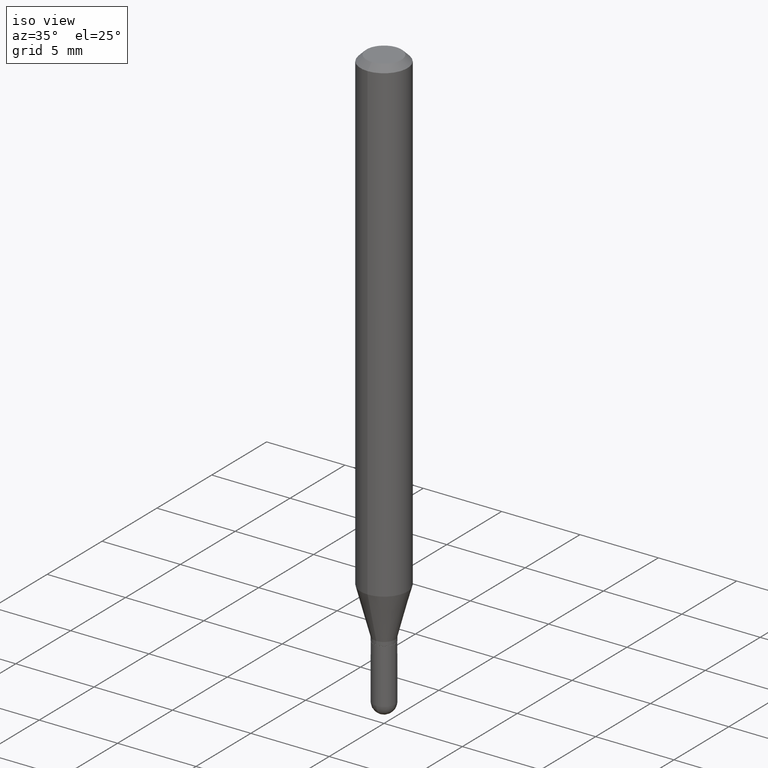
[diagram: clean part render]
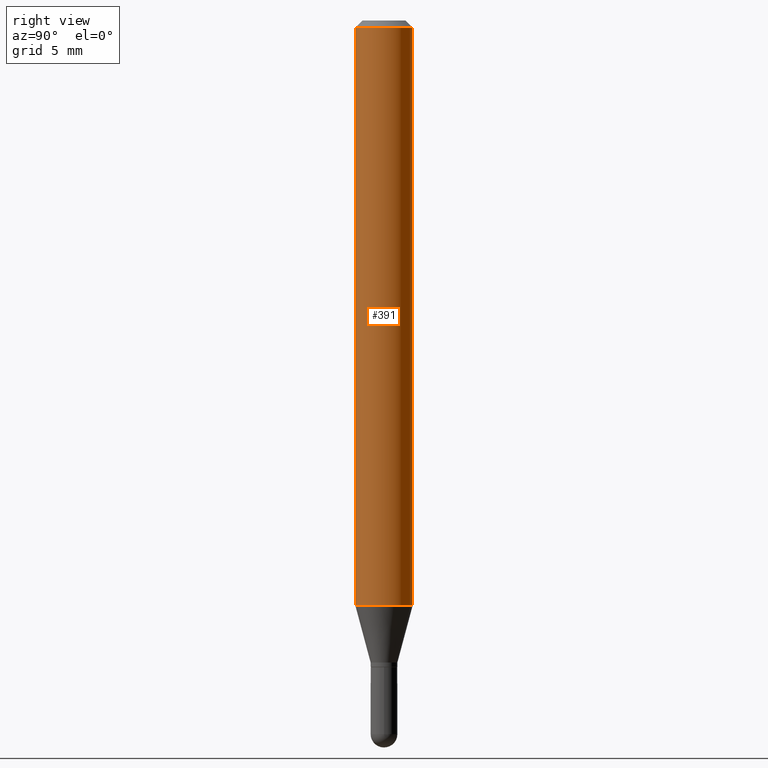
[diagram: tour spotlight — one face highlighted and labeled with its STEP entity id]
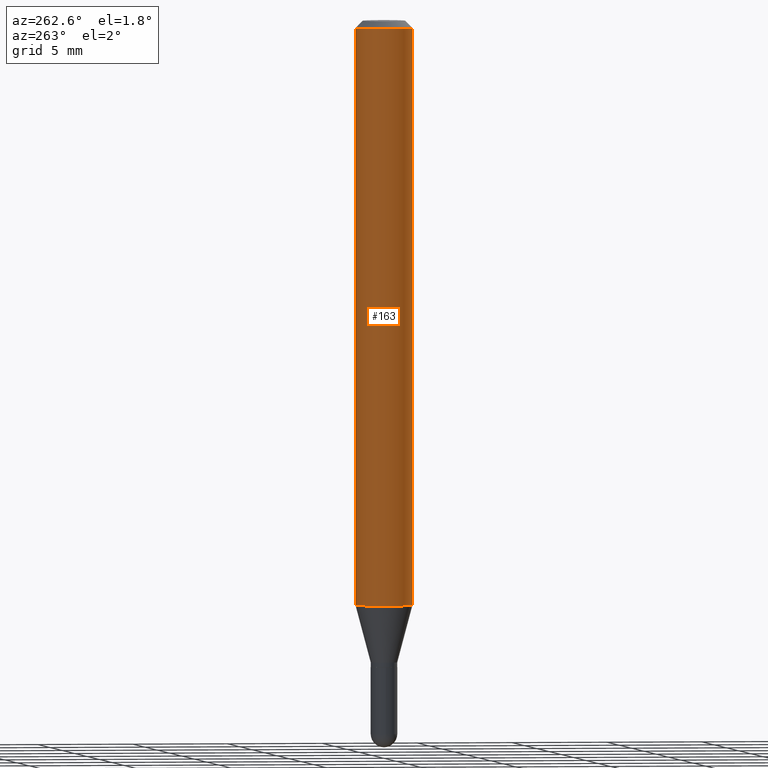
[diagram: tour spotlight — one face highlighted and labeled with its STEP entity id]
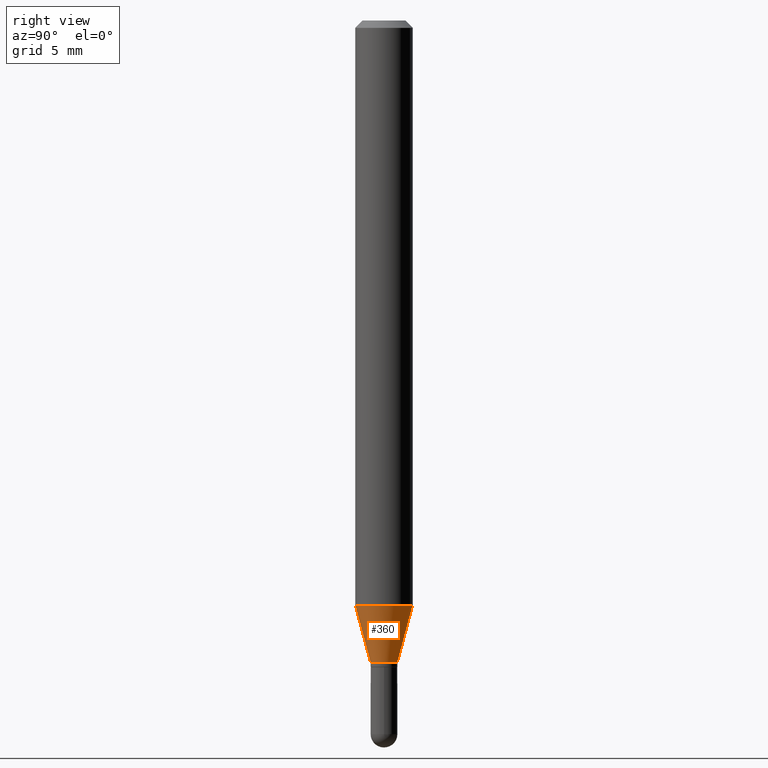
[diagram: tour spotlight — one face highlighted and labeled with its STEP entity id]
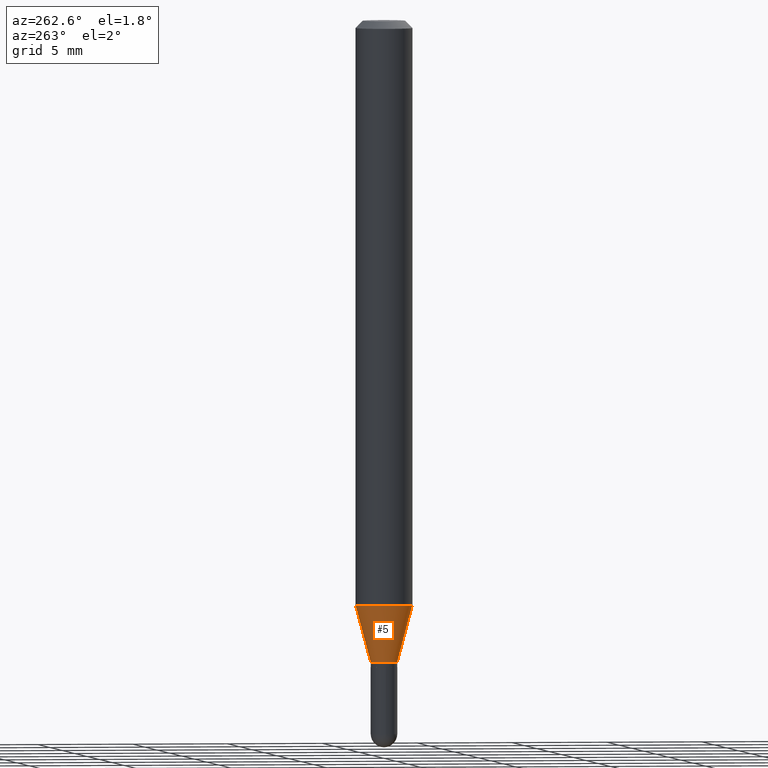
[diagram: tour spotlight — one face highlighted and labeled with its STEP entity id]
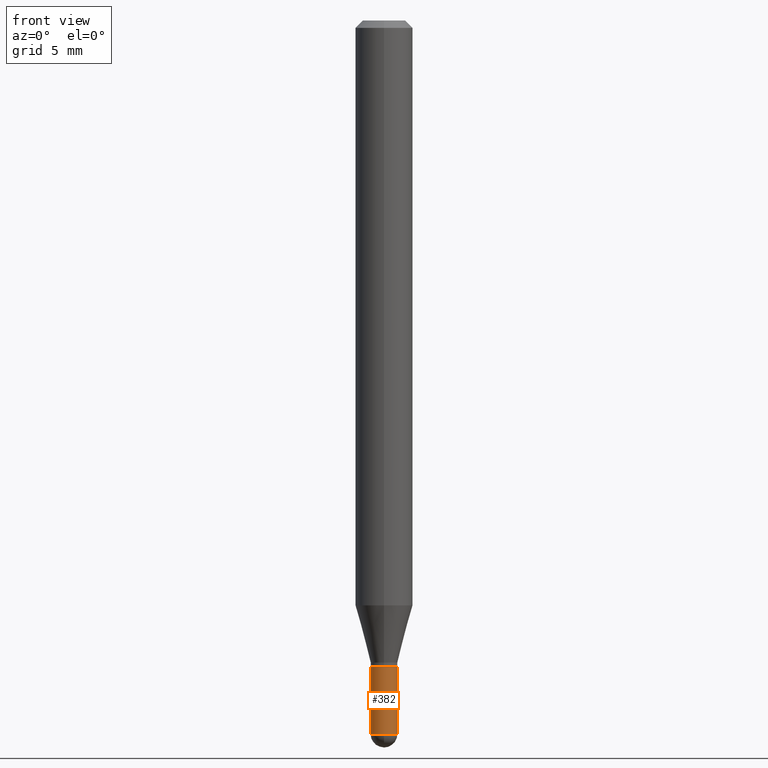
[diagram: tour spotlight — one face highlighted and labeled with its STEP entity id]
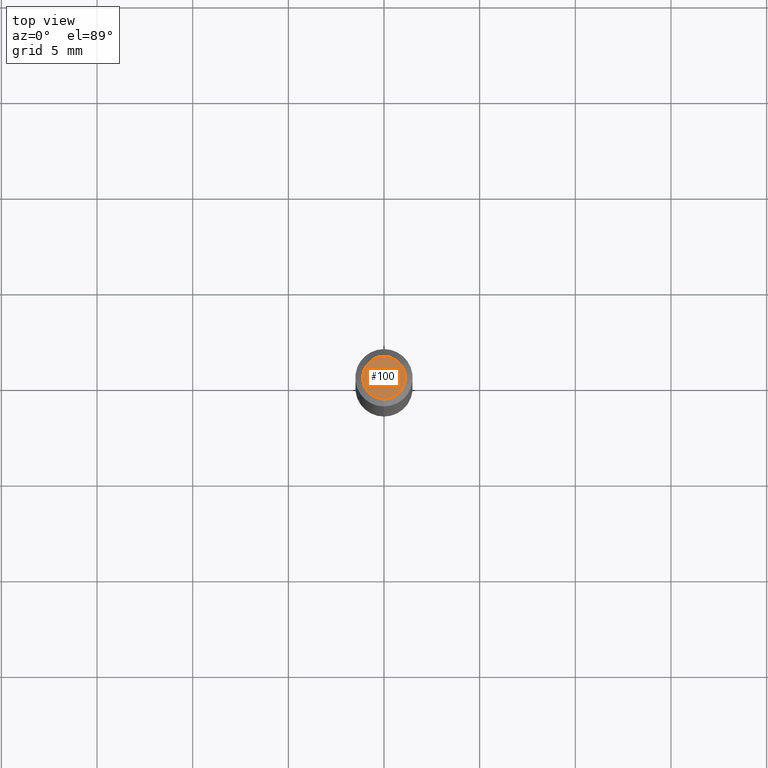
[diagram: tour spotlight — one face highlighted and labeled with its STEP entity id]
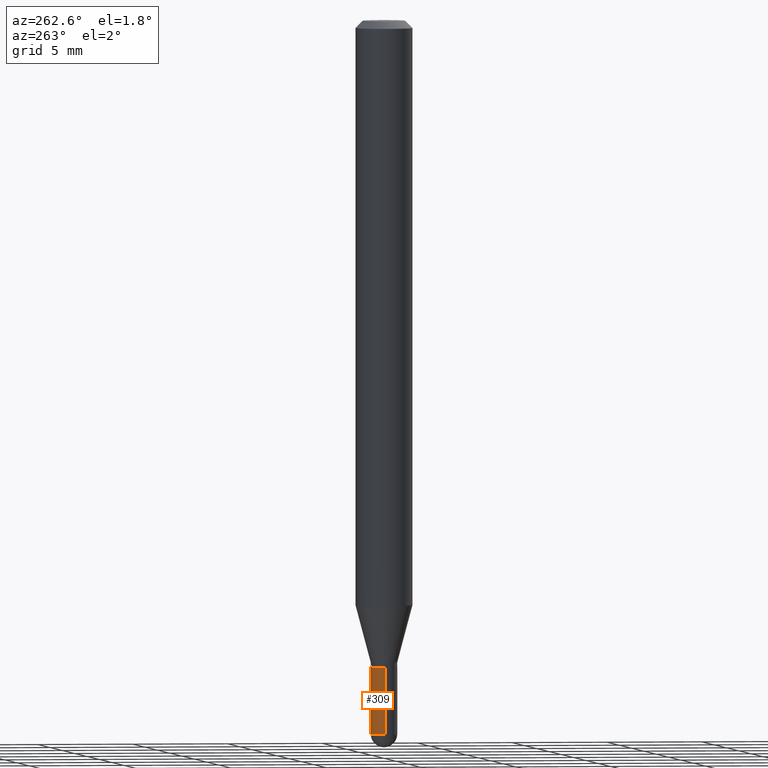
[diagram: tour spotlight — one face highlighted and labeled with its STEP entity id]
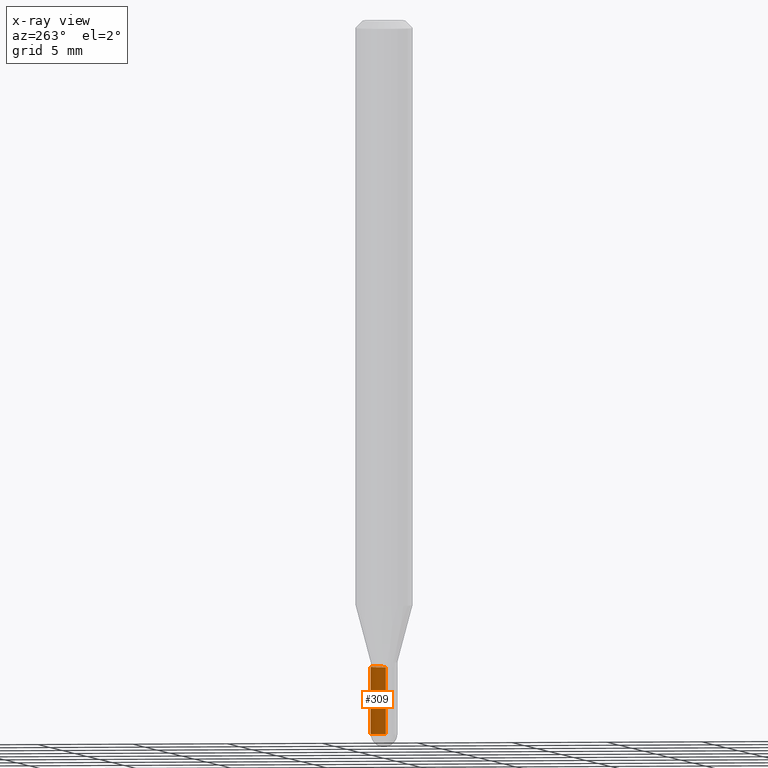
[diagram: x-ray of the same camera — body ghosted, this tour face saturated]
A machine part: a face-by-face anatomy tour. The part has 17 B-rep faces; the first image is the clean iso view, then the 7 largest visible faces are spotlighted one at a time (largest first), each with its STEP entity span.

Face 1 — right view, entity #391. In plain terms, the highlighted cylindrical surface (edge-blend (fillet) strip) has radius 1.4999 mm, axis along (-0, 0, 1).
Definition (entity closure, byte-faithful):
#33 = LINE ( 'NONE', #498, #383 ) ;
#50 = DIRECTION ( 'NONE',  ( -2.445452905076983623E-29, 3.491504110135055043E-15, 1.000000000000000000 ) ) ;
#55 = EDGE_CURVE ( 'NONE', #119, #212, #219, .T. ) ;
#61 = CYLINDRICAL_SURFACE ( 'NONE', #493, 0.05904999999999999832 ) ;
#62 = CARTESIAN_POINT ( 'NONE',  ( 4.195754854663390985E-16, 0.05904999999999999832, -2.061733177034750099E-16 ) ) ;
#68 = ORIENTED_EDGE ( 'NONE', *, *, #156, .F. ) ;
#75 = DIRECTION ( 'NONE',  ( -2.445452905076983623E-29, 3.491504110135055043E-15, 1.000000000000000000 ) ) ;
#81 = CARTESIAN_POINT ( 'NONE',  ( 4.195754854663686808E-16, 0.05904999999999994975, -0.01500000000000023016 ) ) ;
#88 = DIRECTION ( 'NONE',  ( -6.982962677686265922E-15, -1.000000000000000000, 3.505890868245046092E-15 ) ) ;
#90 = CARTESIAN_POINT ( 'NONE',  ( 2.943201366485378008E-29, -4.202166251782840722E-15, -1.203540399561579211 ) ) ;
#119 = VERTEX_POINT ( 'NONE', #438 ) ;
#130 = AXIS2_PLACEMENT_3D ( 'NONE', #436, #358, #88 ) ;
#156 = EDGE_CURVE ( 'NONE', #119, #492, #33, .T. ) ;
#179 = CARTESIAN_POINT ( 'NONE',  ( 4.195754854663682864E-16, 0.05904999999999576560, -1.203540399561579655 ) ) ;
#190 = AXIS2_PLACEMENT_3D ( 'NONE', #90, #284, #401 ) ;
#212 = VERTEX_POINT ( 'NONE', #179 ) ;
#219 = CIRCLE ( 'NONE', #190, 0.05904999999999999832 ) ;
#226 = FACE_OUTER_BOUND ( 'NONE', #462, .T. ) ;
#248 = ORIENTED_EDGE ( 'NONE', *, *, #421, .T. ) ;
#253 = CARTESIAN_POINT ( 'NONE',  ( -4.123439461173736383E-16, -0.05905000000000005383, -0.01499999999999981730 ) ) ;
#275 = DIRECTION ( 'NONE',  ( -6.982962677686265922E-15, -1.000000000000000000, 3.491504110135055438E-15 ) ) ;
#284 = DIRECTION ( 'NONE',  ( -2.445452905076983903E-29, 3.491504110135055043E-15, 1.000000000000000000 ) ) ;
#330 = CIRCLE ( 'NONE', #130, 0.05904999999999999832 ) ;
#349 = VECTOR ( 'NONE', #50, 39.37007874015748143 ) ;
#358 = DIRECTION ( 'NONE',  ( -2.445452905076983903E-29, 3.491504110135055043E-15, 1.000000000000000000 ) ) ;
#383 = VECTOR ( 'NONE', #75, 39.37007874015748143 ) ;
#384 = EDGE_CURVE ( 'NONE', #492, #412, #330, .T. ) ;
#391 = ADVANCED_FACE ( 'NONE', ( #226 ), #61, .T. ) ;
#401 = DIRECTION ( 'NONE',  ( -6.982962677686265922E-15, -1.000000000000000000, 4.626330217890369336E-15 ) ) ;
#412 = VERTEX_POINT ( 'NONE', #81 ) ;
#421 = EDGE_CURVE ( 'NONE', #212, #412, #451, .T. ) ;
#427 = ORIENTED_EDGE ( 'NONE', *, *, #384, .F. ) ;
#436 = CARTESIAN_POINT ( 'NONE',  ( 3.668179357615481635E-31, -5.237256165202590947E-17, -0.01500000000000002373 ) ) ;
#438 = CARTESIAN_POINT ( 'NONE',  ( -4.123439461173447462E-16, -0.05905000000000423105, -1.203540399561578988 ) ) ;
#440 = CARTESIAN_POINT ( 'NONE',  ( 0.000000000000000000, 0.000000000000000000, 0.000000000000000000 ) ) ;
#451 = LINE ( 'NONE', #62, #349 ) ;
#462 = EDGE_LOOP ( 'NONE', ( #471, #248, #427, #68 ) ) ;
#471 = ORIENTED_EDGE ( 'NONE', *, *, #55, .T. ) ;
#492 = VERTEX_POINT ( 'NONE', #253 ) ;
#493 = AXIS2_PLACEMENT_3D ( 'NONE', #440, #499, #275 ) ;
#498 = CARTESIAN_POINT ( 'NONE',  ( -4.123439461173739834E-16, -0.05904999999999999832, 2.061733177034750099E-16 ) ) ;
#499 = DIRECTION ( 'NONE',  ( -2.445452905076983903E-29, 3.491504110135055043E-15, 1.000000000000000000 ) ) ;

Face 2 — auxiliary view, entity #163. In plain terms, the highlighted cylindrical surface (edge-blend (fillet) strip) has radius 1.4999 mm, axis along (-0, 0, 1).
Definition (entity closure, byte-faithful):
#33 = LINE ( 'NONE', #498, #383 ) ;
#50 = DIRECTION ( 'NONE',  ( -2.445452905076983623E-29, 3.491504110135055043E-15, 1.000000000000000000 ) ) ;
#62 = CARTESIAN_POINT ( 'NONE',  ( 4.195754854663390985E-16, 0.05904999999999999832, -2.061733177034750099E-16 ) ) ;
#69 = FACE_OUTER_BOUND ( 'NONE', #269, .T. ) ;
#70 = CIRCLE ( 'NONE', #322, 0.05904999999999999832 ) ;
#75 = DIRECTION ( 'NONE',  ( -2.445452905076983623E-29, 3.491504110135055043E-15, 1.000000000000000000 ) ) ;
#81 = CARTESIAN_POINT ( 'NONE',  ( 4.195754854663686808E-16, 0.05904999999999994975, -0.01500000000000023016 ) ) ;
#94 = DIRECTION ( 'NONE',  ( -6.982962677686265922E-15, -1.000000000000000000, 3.505890868245046092E-15 ) ) ;
#119 = VERTEX_POINT ( 'NONE', #438 ) ;
#133 = CIRCLE ( 'NONE', #501, 0.05904999999999999832 ) ;
#156 = EDGE_CURVE ( 'NONE', #119, #492, #33, .T. ) ;
#159 = CARTESIAN_POINT ( 'NONE',  ( 0.000000000000000000, 0.000000000000000000, 0.000000000000000000 ) ) ;
#161 = ORIENTED_EDGE ( 'NONE', *, *, #214, .T. ) ;
#163 = ADVANCED_FACE ( 'NONE', ( #69 ), #197, .T. ) ;
#169 = ORIENTED_EDGE ( 'NONE', *, *, #421, .F. ) ;
#179 = CARTESIAN_POINT ( 'NONE',  ( 4.195754854663682864E-16, 0.05904999999999576560, -1.203540399561579655 ) ) ;
#197 = CYLINDRICAL_SURFACE ( 'NONE', #494, 0.05904999999999999832 ) ;
#212 = VERTEX_POINT ( 'NONE', #179 ) ;
#214 = EDGE_CURVE ( 'NONE', #212, #119, #70, .T. ) ;
#224 = ORIENTED_EDGE ( 'NONE', *, *, #466, .F. ) ;
#238 = DIRECTION ( 'NONE',  ( -2.445452905076983903E-29, 3.491504110135055043E-15, 1.000000000000000000 ) ) ;
#253 = CARTESIAN_POINT ( 'NONE',  ( -4.123439461173736383E-16, -0.05905000000000005383, -0.01499999999999981730 ) ) ;
#269 = EDGE_LOOP ( 'NONE', ( #169, #161, #317, #224 ) ) ;
#291 = CARTESIAN_POINT ( 'NONE',  ( 2.943201366485378008E-29, -4.202166251782840722E-15, -1.203540399561579211 ) ) ;
#317 = ORIENTED_EDGE ( 'NONE', *, *, #156, .T. ) ;
#322 = AXIS2_PLACEMENT_3D ( 'NONE', #291, #375, #449 ) ;
#349 = VECTOR ( 'NONE', #50, 39.37007874015748143 ) ;
#375 = DIRECTION ( 'NONE',  ( -2.445452905076983903E-29, 3.491504110135055043E-15, 1.000000000000000000 ) ) ;
#383 = VECTOR ( 'NONE', #75, 39.37007874015748143 ) ;
#412 = VERTEX_POINT ( 'NONE', #81 ) ;
#421 = EDGE_CURVE ( 'NONE', #212, #412, #451, .T. ) ;
#430 = DIRECTION ( 'NONE',  ( -6.982962677686265922E-15, -1.000000000000000000, 3.491504110135055438E-15 ) ) ;
#438 = CARTESIAN_POINT ( 'NONE',  ( -4.123439461173447462E-16, -0.05905000000000423105, -1.203540399561578988 ) ) ;
#443 = DIRECTION ( 'NONE',  ( -2.445452905076983903E-29, 3.491504110135055043E-15, 1.000000000000000000 ) ) ;
#449 = DIRECTION ( 'NONE',  ( -6.982962677686265922E-15, -1.000000000000000000, 4.626330217890369336E-15 ) ) ;
#451 = LINE ( 'NONE', #62, #349 ) ;
#466 = EDGE_CURVE ( 'NONE', #412, #492, #133, .T. ) ;
#482 = CARTESIAN_POINT ( 'NONE',  ( 3.668179357615481635E-31, -5.237256165202590947E-17, -0.01500000000000002373 ) ) ;
#492 = VERTEX_POINT ( 'NONE', #253 ) ;
#494 = AXIS2_PLACEMENT_3D ( 'NONE', #159, #238, #430 ) ;
#498 = CARTESIAN_POINT ( 'NONE',  ( -4.123439461173739834E-16, -0.05904999999999999832, 2.061733177034750099E-16 ) ) ;
#501 = AXIS2_PLACEMENT_3D ( 'NONE', #482, #443, #94 ) ;

Face 3 — right view, entity #360. In plain terms, the highlighted conical surface has half-angle 15 deg.
Definition (entity closure, byte-faithful):
#9 = EDGE_LOOP ( 'NONE', ( #30, #454, #347, #95 ) ) ;
#21 = CARTESIAN_POINT ( 'NONE',  ( 1.957545237019374412E-16, 0.02754999999999504373, -1.321099999999999719 ) ) ;
#23 = EDGE_CURVE ( 'NONE', #334, #119, #171, .T. ) ;
#30 = ORIENTED_EDGE ( 'NONE', *, *, #495, .T. ) ;
#52 = CARTESIAN_POINT ( 'NONE',  ( -1.923806217702219352E-16, -0.02755000000000427246, -1.321099999999999719 ) ) ;
#55 = EDGE_CURVE ( 'NONE', #119, #212, #219, .T. ) ;
#90 = CARTESIAN_POINT ( 'NONE',  ( 2.943201366485378008E-29, -4.202166251782840722E-15, -1.203540399561579211 ) ) ;
#95 = ORIENTED_EDGE ( 'NONE', *, *, #23, .F. ) ;
#101 = VERTEX_POINT ( 'NONE', #172 ) ;
#119 = VERTEX_POINT ( 'NONE', #438 ) ;
#145 = DIRECTION ( 'NONE',  ( 1.839019923739601104E-15, 0.2588190451025250693, 0.9659258262890670910 ) ) ;
#171 = LINE ( 'NONE', #52, #425 ) ;
#172 = CARTESIAN_POINT ( 'NONE',  ( 3.076650045841530487E-16, 0.02754999999999504373, -1.321099999999999719 ) ) ;
#179 = CARTESIAN_POINT ( 'NONE',  ( 4.195754854663682864E-16, 0.05904999999999576560, -1.203540399561579655 ) ) ;
#183 = DIRECTION ( 'NONE',  ( -6.982962677686265922E-15, -1.000000000000000000, 0.000000000000000000 ) ) ;
#190 = AXIS2_PLACEMENT_3D ( 'NONE', #90, #284, #401 ) ;
#212 = VERTEX_POINT ( 'NONE', #179 ) ;
#219 = CIRCLE ( 'NONE', #190, 0.05904999999999999832 ) ;
#242 = CARTESIAN_POINT ( 'NONE',  ( 3.230687832897202823E-29, -4.612626079899420322E-15, -1.321099999999999719 ) ) ;
#268 = VECTOR ( 'NONE', #145, 39.37007874015748143 ) ;
#279 = DIRECTION ( 'NONE',  ( -6.982962677686265922E-15, -1.000000000000000000, 0.000000000000000000 ) ) ;
#284 = DIRECTION ( 'NONE',  ( -2.445452905076983903E-29, 3.491504110135055043E-15, 1.000000000000000000 ) ) ;
#294 = EDGE_CURVE ( 'NONE', #101, #212, #333, .T. ) ;
#311 = DIRECTION ( 'NONE',  ( -2.445452905076983903E-29, 3.491504110135055043E-15, 1.000000000000000000 ) ) ;
#314 = FACE_OUTER_BOUND ( 'NONE', #9, .T. ) ;
#318 = DIRECTION ( 'NONE',  ( -1.807323732225330928E-15, -0.2588190451025182970, 0.9659258262890689783 ) ) ;
#327 = CONICAL_SURFACE ( 'NONE', #328, 0.02754999999999965810, 0.2617993877991502960 ) ;
#328 = AXIS2_PLACEMENT_3D ( 'NONE', #242, #311, #279 ) ;
#333 = LINE ( 'NONE', #21, #268 ) ;
#334 = VERTEX_POINT ( 'NONE', #467 ) ;
#345 = CIRCLE ( 'NONE', #485, 0.02754999999999965810 ) ;
#347 = ORIENTED_EDGE ( 'NONE', *, *, #55, .F. ) ;
#360 = ADVANCED_FACE ( 'NONE', ( #314 ), #327, .T. ) ;
#401 = DIRECTION ( 'NONE',  ( -6.982962677686265922E-15, -1.000000000000000000, 4.626330217890369336E-15 ) ) ;
#411 = DIRECTION ( 'NONE',  ( -2.445452905076983903E-29, 3.491504110135055043E-15, 1.000000000000000000 ) ) ;
#425 = VECTOR ( 'NONE', #318, 39.37007874015748143 ) ;
#438 = CARTESIAN_POINT ( 'NONE',  ( -4.123439461173447462E-16, -0.05905000000000423105, -1.203540399561578988 ) ) ;
#452 = CARTESIAN_POINT ( 'NONE',  ( 3.230687832897202823E-29, -4.612626079899420322E-15, -1.321099999999999719 ) ) ;
#454 = ORIENTED_EDGE ( 'NONE', *, *, #294, .T. ) ;
#467 = CARTESIAN_POINT ( 'NONE',  ( -1.923806217702219352E-16, -0.02755000000000427246, -1.321099999999999719 ) ) ;
#485 = AXIS2_PLACEMENT_3D ( 'NONE', #452, #411, #183 ) ;
#495 = EDGE_CURVE ( 'NONE', #334, #101, #345, .T. ) ;

Face 4 — auxiliary view, entity #5. In plain terms, the highlighted conical surface has half-angle 15 deg.
Definition (entity closure, byte-faithful):
#5 = ADVANCED_FACE ( 'NONE', ( #129 ), #313, .T. ) ;
#21 = CARTESIAN_POINT ( 'NONE',  ( 1.957545237019374412E-16, 0.02754999999999504373, -1.321099999999999719 ) ) ;
#23 = EDGE_CURVE ( 'NONE', #334, #119, #171, .T. ) ;
#42 = DIRECTION ( 'NONE',  ( -6.982962677686265922E-15, -1.000000000000000000, 0.000000000000000000 ) ) ;
#52 = CARTESIAN_POINT ( 'NONE',  ( -1.923806217702219352E-16, -0.02755000000000427246, -1.321099999999999719 ) ) ;
#70 = CIRCLE ( 'NONE', #322, 0.05904999999999999832 ) ;
#78 = CIRCLE ( 'NONE', #423, 0.02754999999999965810 ) ;
#101 = VERTEX_POINT ( 'NONE', #172 ) ;
#119 = VERTEX_POINT ( 'NONE', #438 ) ;
#129 = FACE_OUTER_BOUND ( 'NONE', #507, .T. ) ;
#145 = DIRECTION ( 'NONE',  ( 1.839019923739601104E-15, 0.2588190451025250693, 0.9659258262890670910 ) ) ;
#171 = LINE ( 'NONE', #52, #425 ) ;
#172 = CARTESIAN_POINT ( 'NONE',  ( 3.076650045841530487E-16, 0.02754999999999504373, -1.321099999999999719 ) ) ;
#178 = ORIENTED_EDGE ( 'NONE', *, *, #214, .F. ) ;
#179 = CARTESIAN_POINT ( 'NONE',  ( 4.195754854663682864E-16, 0.05904999999999576560, -1.203540399561579655 ) ) ;
#212 = VERTEX_POINT ( 'NONE', #179 ) ;
#214 = EDGE_CURVE ( 'NONE', #212, #119, #70, .T. ) ;
#240 = EDGE_CURVE ( 'NONE', #101, #334, #78, .T. ) ;
#250 = DIRECTION ( 'NONE',  ( -6.982962677686265922E-15, -1.000000000000000000, 0.000000000000000000 ) ) ;
#268 = VECTOR ( 'NONE', #145, 39.37007874015748143 ) ;
#291 = CARTESIAN_POINT ( 'NONE',  ( 2.943201366485378008E-29, -4.202166251782840722E-15, -1.203540399561579211 ) ) ;
#294 = EDGE_CURVE ( 'NONE', #101, #212, #333, .T. ) ;
#313 = CONICAL_SURFACE ( 'NONE', #397, 0.02754999999999965810, 0.2617993877991502960 ) ;
#318 = DIRECTION ( 'NONE',  ( -1.807323732225330928E-15, -0.2588190451025182970, 0.9659258262890689783 ) ) ;
#320 = CARTESIAN_POINT ( 'NONE',  ( 3.230687832897202823E-29, -4.612626079899420322E-15, -1.321099999999999719 ) ) ;
#322 = AXIS2_PLACEMENT_3D ( 'NONE', #291, #375, #449 ) ;
#333 = LINE ( 'NONE', #21, #268 ) ;
#334 = VERTEX_POINT ( 'NONE', #467 ) ;
#352 = ORIENTED_EDGE ( 'NONE', *, *, #23, .T. ) ;
#357 = DIRECTION ( 'NONE',  ( -2.445452905076983903E-29, 3.491504110135055043E-15, 1.000000000000000000 ) ) ;
#367 = DIRECTION ( 'NONE',  ( -2.445452905076983903E-29, 3.491504110135055043E-15, 1.000000000000000000 ) ) ;
#375 = DIRECTION ( 'NONE',  ( -2.445452905076983903E-29, 3.491504110135055043E-15, 1.000000000000000000 ) ) ;
#397 = AXIS2_PLACEMENT_3D ( 'NONE', #483, #357, #42 ) ;
#423 = AXIS2_PLACEMENT_3D ( 'NONE', #320, #367, #250 ) ;
#425 = VECTOR ( 'NONE', #318, 39.37007874015748143 ) ;
#438 = CARTESIAN_POINT ( 'NONE',  ( -4.123439461173447462E-16, -0.05905000000000423105, -1.203540399561578988 ) ) ;
#449 = DIRECTION ( 'NONE',  ( -6.982962677686265922E-15, -1.000000000000000000, 4.626330217890369336E-15 ) ) ;
#457 = ORIENTED_EDGE ( 'NONE', *, *, #240, .T. ) ;
#467 = CARTESIAN_POINT ( 'NONE',  ( -1.923806217702219352E-16, -0.02755000000000427246, -1.321099999999999719 ) ) ;
#483 = CARTESIAN_POINT ( 'NONE',  ( 3.230687832897202823E-29, -4.612626079899420322E-15, -1.321099999999999719 ) ) ;
#496 = ORIENTED_EDGE ( 'NONE', *, *, #294, .F. ) ;
#507 = EDGE_LOOP ( 'NONE', ( #496, #457, #352, #178 ) ) ;

Face 5 — front view, entity #382. In plain terms, the highlighted cylindrical surface (edge-blend (fillet) strip) has radius 0.6998 mm, axis along (-0, 0, 1).
Definition (entity closure, byte-faithful):
#1 = VERTEX_POINT ( 'NONE', #132 ) ;
#2 = EDGE_CURVE ( 'NONE', #1, #237, #448, .T. ) ;
#31 = LINE ( 'NONE', #393, #227 ) ;
#39 = CARTESIAN_POINT ( 'NONE',  ( 0.000000000000000000, 0.000000000000000000, 0.000000000000000000 ) ) ;
#44 = CARTESIAN_POINT ( 'NONE',  ( 0.02754999999999999810, -1.923806217702566205E-16, 1.343386701731780333E-30 ) ) ;
#59 = DIRECTION ( 'NONE',  ( -2.445468806185136597E-29, 3.491481338843145583E-15, 1.000000000000000000 ) ) ;
#74 = AXIS2_PLACEMENT_3D ( 'NONE', #39, #165, #167 ) ;
#83 = VERTEX_POINT ( 'NONE', #180 ) ;
#87 = CARTESIAN_POINT ( 'NONE',  ( 0.02755000000000000157, -4.838494839368829407E-15, -1.330699999999999772 ) ) ;
#92 = FACE_OUTER_BOUND ( 'NONE', #189, .T. ) ;
#98 = ORIENTED_EDGE ( 'NONE', *, *, #2, .F. ) ;
#106 = EDGE_CURVE ( 'NONE', #201, #237, #398, .T. ) ;
#111 = ORIENTED_EDGE ( 'NONE', *, *, #106, .T. ) ;
#112 = CIRCLE ( 'NONE', #356, 0.02754999999999999810 ) ;
#125 = EDGE_CURVE ( 'NONE', #83, #1, #31, .T. ) ;
#126 = VECTOR ( 'NONE', #211, 39.37007874015748143 ) ;
#132 = CARTESIAN_POINT ( 'NONE',  ( -0.02755000000000000157, -4.691010045176429992E-15, -1.330699999999999772 ) ) ;
#149 = CARTESIAN_POINT ( 'NONE',  ( 0.02754999999999999810, -5.079145190648592548E-15, -1.468549999999999800 ) ) ;
#165 = DIRECTION ( 'NONE',  ( -2.445468806185136597E-29, 3.491481338843145583E-15, 1.000000000000000000 ) ) ;
#167 = DIRECTION ( 'NONE',  ( 1.000000000000000000, -6.982962677686265922E-15, 4.876176775795936353E-29 ) ) ;
#180 = CARTESIAN_POINT ( 'NONE',  ( -0.02754999999999999810, -4.691010045176429992E-15, -1.468549999999999800 ) ) ;
#182 = CARTESIAN_POINT ( 'NONE',  ( -1.923806217702204068E-16, -0.02755000000000508778, -1.468549999999999800 ) ) ;
#188 = CARTESIAN_POINT ( 'NONE',  ( 3.591293215323181808E-29, -5.127414920158100475E-15, -1.468549999999999800 ) ) ;
#189 = EDGE_LOOP ( 'NONE', ( #265, #340, #290, #111, #98 ) ) ;
#201 = VERTEX_POINT ( 'NONE', #149 ) ;
#209 = AXIS2_PLACEMENT_3D ( 'NONE', #370, #426, #474 ) ;
#211 = DIRECTION ( 'NONE',  ( -2.445468806185136877E-29, 3.491481338843145188E-15, 1.000000000000000000 ) ) ;
#221 = DIRECTION ( 'NONE',  ( -2.445468806185136597E-29, 3.491481338843145583E-15, 1.000000000000000000 ) ) ;
#227 = VECTOR ( 'NONE', #273, 39.37007874015748143 ) ;
#237 = VERTEX_POINT ( 'NONE', #87 ) ;
#265 = ORIENTED_EDGE ( 'NONE', *, *, #125, .F. ) ;
#273 = DIRECTION ( 'NONE',  ( -2.445468806185136877E-29, 3.491481338843145188E-15, 1.000000000000000000 ) ) ;
#290 = ORIENTED_EDGE ( 'NONE', *, *, #489, .T. ) ;
#301 = AXIS2_PLACEMENT_3D ( 'NONE', #359, #221, #445 ) ;
#339 = VERTEX_POINT ( 'NONE', #182 ) ;
#340 = ORIENTED_EDGE ( 'NONE', *, *, #442, .T. ) ;
#356 = AXIS2_PLACEMENT_3D ( 'NONE', #188, #59, #455 ) ;
#359 = CARTESIAN_POINT ( 'NONE',  ( 3.254185340390560677E-29, -4.646114217598572614E-15, -1.330699999999999772 ) ) ;
#366 = CYLINDRICAL_SURFACE ( 'NONE', #74, 0.02754999999999999810 ) ;
#370 = CARTESIAN_POINT ( 'NONE',  ( 3.591293215323181808E-29, -5.127414920158100475E-15, -1.468549999999999800 ) ) ;
#382 = ADVANCED_FACE ( 'NONE', ( #92 ), #366, .T. ) ;
#393 = CARTESIAN_POINT ( 'NONE',  ( -0.02754999999999999810, 1.957545237019075877E-16, -1.355166617365226390E-30 ) ) ;
#398 = LINE ( 'NONE', #44, #126 ) ;
#426 = DIRECTION ( 'NONE',  ( -2.445468806185136597E-29, 3.491481338843145583E-15, 1.000000000000000000 ) ) ;
#435 = CIRCLE ( 'NONE', #209, 0.02754999999999999810 ) ;
#442 = EDGE_CURVE ( 'NONE', #83, #339, #435, .T. ) ;
#445 = DIRECTION ( 'NONE',  ( 1.000000000000000000, -6.982962677686256455E-15, 0.000000000000000000 ) ) ;
#448 = CIRCLE ( 'NONE', #301, 0.02755000000000000157 ) ;
#455 = DIRECTION ( 'NONE',  ( 1.000000000000000000, -6.982962677686257244E-15, 0.000000000000000000 ) ) ;
#474 = DIRECTION ( 'NONE',  ( 1.000000000000000000, -6.982962677686257244E-15, 0.000000000000000000 ) ) ;
#489 = EDGE_CURVE ( 'NONE', #339, #201, #112, .T. ) ;

Face 6 — top view, entity #100. In plain terms, the highlighted planar face has unit normal (0, -0, -1).
Definition (entity closure, byte-faithful):
#8 = PLANE ( 'NONE',  #233 ) ;
#14 = VERTEX_POINT ( 'NONE', #373 ) ;
#16 = DIRECTION ( 'NONE',  ( -2.445452905076983903E-29, 3.491504110135055043E-15, 1.000000000000000000 ) ) ;
#58 = CARTESIAN_POINT ( 'NONE',  ( -3.536586717851222218E-16, -0.04404999999999999888, 1.299395162454715791E-16 ) ) ;
#82 = DIRECTION ( 'NONE',  ( 6.982962677686265922E-15, 1.000000000000000000, -3.491504110135055043E-15 ) ) ;
#100 = ADVANCED_FACE ( 'NONE', ( #331 ), #8, .F. ) ;
#141 = DIRECTION ( 'NONE',  ( 2.445452905076983623E-29, -3.491504110135055043E-15, -1.000000000000000000 ) ) ;
#203 = EDGE_LOOP ( 'NONE', ( #380, #329 ) ) ;
#206 = EDGE_CURVE ( 'NONE', #303, #14, #295, .T. ) ;
#208 = CARTESIAN_POINT ( 'NONE',  ( 5.835153820226643818E-46, -8.331161685548889663E-32, -2.386123980597757681E-17 ) ) ;
#223 = CARTESIAN_POINT ( 'NONE',  ( 5.835153820226643818E-46, -8.331161685548889663E-32, -2.386123980597757681E-17 ) ) ;
#233 = AXIS2_PLACEMENT_3D ( 'NONE', #245, #141, #82 ) ;
#245 = CARTESIAN_POINT ( 'NONE',  ( 3.075995059520799729E-16, 0.04404999999999999888, -1.657313759544379597E-16 ) ) ;
#246 = DIRECTION ( 'NONE',  ( -2.445452905076983903E-29, 3.491504110135055043E-15, 1.000000000000000000 ) ) ;
#274 = AXIS2_PLACEMENT_3D ( 'NONE', #223, #16, #299 ) ;
#295 = CIRCLE ( 'NONE', #274, 0.04404999999999999888 ) ;
#299 = DIRECTION ( 'NONE',  ( -6.982962677686265133E-15, -1.000000000000000000, 3.491504110135054649E-15 ) ) ;
#303 = VERTEX_POINT ( 'NONE', #58 ) ;
#329 = ORIENTED_EDGE ( 'NONE', *, *, #206, .T. ) ;
#331 = FACE_OUTER_BOUND ( 'NONE', #203, .T. ) ;
#364 = DIRECTION ( 'NONE',  ( -6.982962677686265133E-15, -1.000000000000000000, 3.491504110135054649E-15 ) ) ;
#373 = CARTESIAN_POINT ( 'NONE',  ( 3.599717260347271507E-16, 0.04404999999999999888, -1.776619958574267204E-16 ) ) ;
#380 = ORIENTED_EDGE ( 'NONE', *, *, #446, .T. ) ;
#396 = AXIS2_PLACEMENT_3D ( 'NONE', #208, #246, #364 ) ;
#446 = EDGE_CURVE ( 'NONE', #14, #303, #456, .T. ) ;
#456 = CIRCLE ( 'NONE', #396, 0.04404999999999999888 ) ;

Face 7 — auxiliary view, entity #309. An x-ray twin of the same camera follows (body ghosted, this face saturated) — the face is partly hidden behind the body. In plain terms, the highlighted cylindrical surface (edge-blend (fillet) strip) has radius 0.6998 mm, axis along (-0, 0, 1).
Definition (entity closure, byte-faithful):
#1 = VERTEX_POINT ( 'NONE', #132 ) ;
#22 = AXIS2_PLACEMENT_3D ( 'NONE', #49, #84, #362 ) ;
#31 = LINE ( 'NONE', #393, #227 ) ;
#38 = CYLINDRICAL_SURFACE ( 'NONE', #503, 0.02754999999999999810 ) ;
#44 = CARTESIAN_POINT ( 'NONE',  ( 0.02754999999999999810, -1.923806217702566205E-16, 1.343386701731780333E-30 ) ) ;
#46 = ORIENTED_EDGE ( 'NONE', *, *, #244, .F. ) ;
#49 = CARTESIAN_POINT ( 'NONE',  ( 3.591293215323181808E-29, -5.127414920158100475E-15, -1.468549999999999800 ) ) ;
#83 = VERTEX_POINT ( 'NONE', #180 ) ;
#84 = DIRECTION ( 'NONE',  ( -2.445468806185136597E-29, 3.491481338843145583E-15, 1.000000000000000000 ) ) ;
#86 = CIRCLE ( 'NONE', #22, 0.02754999999999999810 ) ;
#87 = CARTESIAN_POINT ( 'NONE',  ( 0.02755000000000000157, -4.838494839368829407E-15, -1.330699999999999772 ) ) ;
#89 = EDGE_CURVE ( 'NONE', #464, #83, #86, .T. ) ;
#106 = EDGE_CURVE ( 'NONE', #201, #237, #398, .T. ) ;
#125 = EDGE_CURVE ( 'NONE', #83, #1, #31, .T. ) ;
#126 = VECTOR ( 'NONE', #211, 39.37007874015748143 ) ;
#127 = CARTESIAN_POINT ( 'NONE',  ( 0.000000000000000000, 0.000000000000000000, 0.000000000000000000 ) ) ;
#132 = CARTESIAN_POINT ( 'NONE',  ( -0.02755000000000000157, -4.691010045176429992E-15, -1.330699999999999772 ) ) ;
#149 = CARTESIAN_POINT ( 'NONE',  ( 0.02754999999999999810, -5.079145190648592548E-15, -1.468549999999999800 ) ) ;
#150 = ORIENTED_EDGE ( 'NONE', *, *, #125, .T. ) ;
#176 = CIRCLE ( 'NONE', #458, 0.02754999999999999810 ) ;
#177 = DIRECTION ( 'NONE',  ( -2.445468806185136597E-29, 3.491481338843145583E-15, 1.000000000000000000 ) ) ;
#180 = CARTESIAN_POINT ( 'NONE',  ( -0.02754999999999999810, -4.691010045176429992E-15, -1.468549999999999800 ) ) ;
#196 = DIRECTION ( 'NONE',  ( 1.000000000000000000, -6.982962677686265922E-15, 4.876176775795936353E-29 ) ) ;
#201 = VERTEX_POINT ( 'NONE', #149 ) ;
#211 = DIRECTION ( 'NONE',  ( -2.445468806185136877E-29, 3.491481338843145188E-15, 1.000000000000000000 ) ) ;
#215 = CARTESIAN_POINT ( 'NONE',  ( 3.254185340390560677E-29, -4.646114217598572614E-15, -1.330699999999999772 ) ) ;
#227 = VECTOR ( 'NONE', #273, 39.37007874015748143 ) ;
#237 = VERTEX_POINT ( 'NONE', #87 ) ;
#241 = ORIENTED_EDGE ( 'NONE', *, *, #106, .F. ) ;
#244 = EDGE_CURVE ( 'NONE', #237, #1, #379, .T. ) ;
#264 = DIRECTION ( 'NONE',  ( -2.445468806185136597E-29, 3.491481338843145583E-15, 1.000000000000000000 ) ) ;
#267 = EDGE_LOOP ( 'NONE', ( #325, #150, #46, #241, #419 ) ) ;
#273 = DIRECTION ( 'NONE',  ( -2.445468806185136877E-29, 3.491481338843145188E-15, 1.000000000000000000 ) ) ;
#297 = CARTESIAN_POINT ( 'NONE',  ( 3.591293215323181808E-29, -5.127414920158100475E-15, -1.468549999999999800 ) ) ;
#309 = ADVANCED_FACE ( 'NONE', ( #439 ), #38, .T. ) ;
#310 = DIRECTION ( 'NONE',  ( -2.445468806185136597E-29, 3.491481338843145583E-15, 1.000000000000000000 ) ) ;
#324 = DIRECTION ( 'NONE',  ( 1.000000000000000000, -6.982962677686256455E-15, 0.000000000000000000 ) ) ;
#325 = ORIENTED_EDGE ( 'NONE', *, *, #89, .T. ) ;
#353 = EDGE_CURVE ( 'NONE', #201, #464, #176, .T. ) ;
#362 = DIRECTION ( 'NONE',  ( 1.000000000000000000, -6.982962677686257244E-15, 0.000000000000000000 ) ) ;
#365 = CARTESIAN_POINT ( 'NONE',  ( 1.957545237019431358E-16, 0.02754999999999482516, -1.468549999999999800 ) ) ;
#379 = CIRCLE ( 'NONE', #468, 0.02755000000000000157 ) ;
#393 = CARTESIAN_POINT ( 'NONE',  ( -0.02754999999999999810, 1.957545237019075877E-16, -1.355166617365226390E-30 ) ) ;
#398 = LINE ( 'NONE', #44, #126 ) ;
#419 = ORIENTED_EDGE ( 'NONE', *, *, #353, .T. ) ;
#439 = FACE_OUTER_BOUND ( 'NONE', #267, .T. ) ;
#458 = AXIS2_PLACEMENT_3D ( 'NONE', #297, #264, #480 ) ;
#464 = VERTEX_POINT ( 'NONE', #365 ) ;
#468 = AXIS2_PLACEMENT_3D ( 'NONE', #215, #177, #324 ) ;
#480 = DIRECTION ( 'NONE',  ( 1.000000000000000000, -6.982962677686257244E-15, 0.000000000000000000 ) ) ;
#503 = AXIS2_PLACEMENT_3D ( 'NONE', #127, #310, #196 ) ;